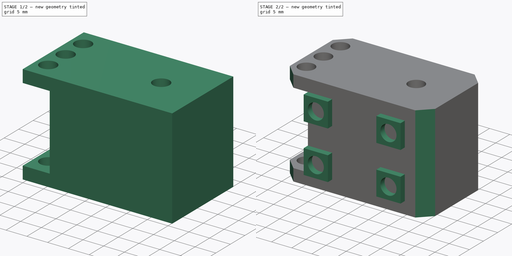
[diagram: build sequence overview — one tinted view per stage of 2, left to right]
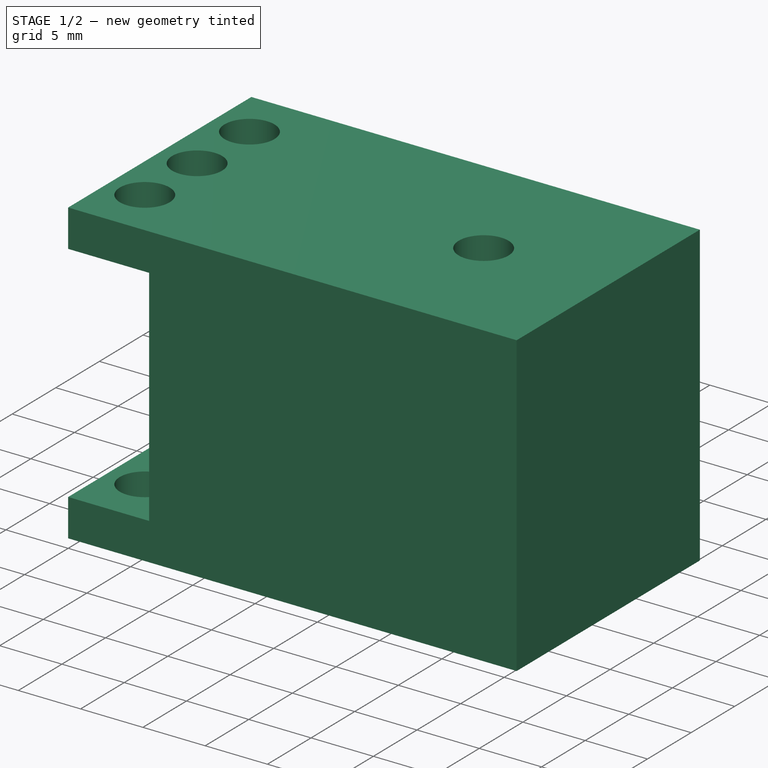
[diagram: stage 1 of 2 — iso view after this stage's code; geometry added in this stage tinted green]
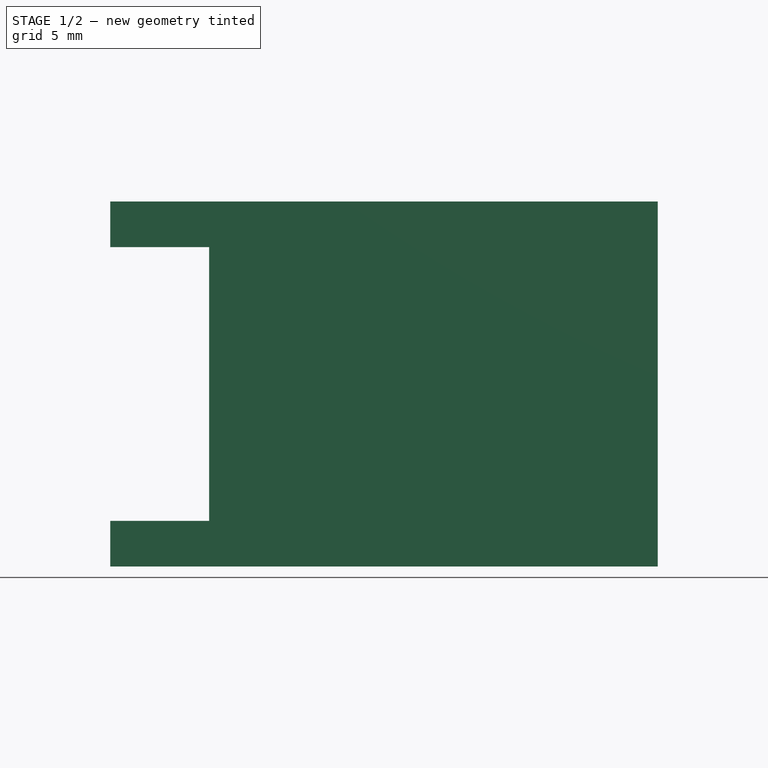
[diagram: stage 1 of 2 — front view after this stage's code; geometry added in this stage tinted green]
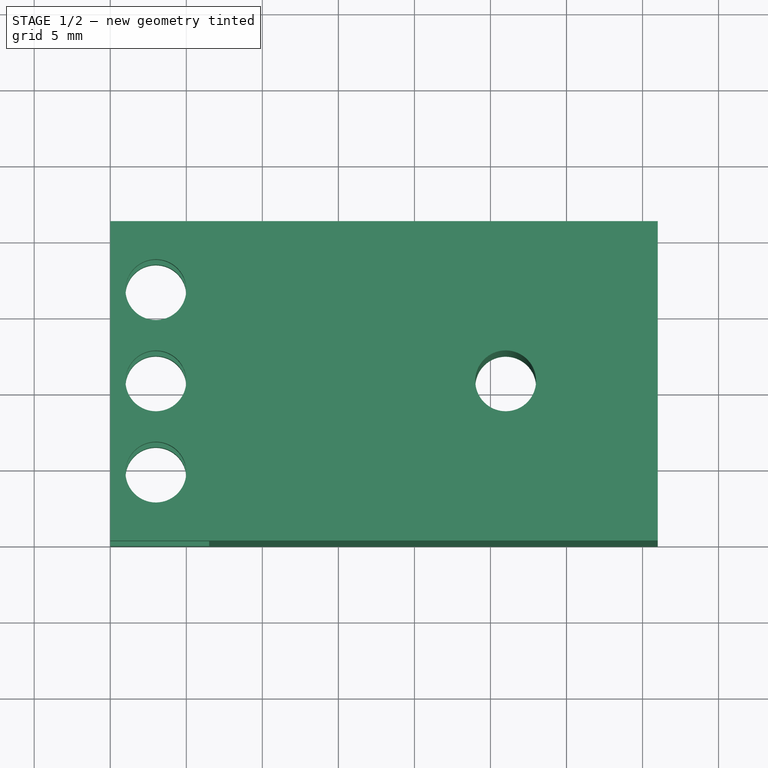
[diagram: stage 1 of 2 — top view after this stage's code; geometry added in this stage tinted green]
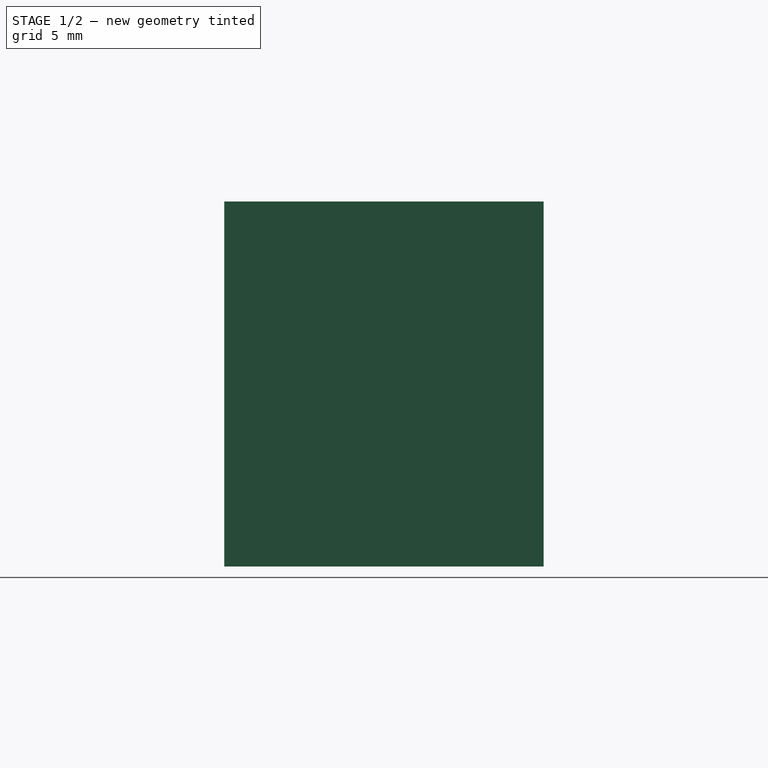
[diagram: stage 1 of 2 — right view after this stage's code; geometry added in this stage tinted green]
FCSTD DOCUMENT  (FreeCAD 0.16R6707 (Git))
Label: XL-320
License: All rights reserved
LicenseURL: http://en.wikipedia.org/wiki/All_rights_reserved
objects: Sketcher::SketchObject×4, PartDesign::Pad×2, PartDesign::Pocket×2
note: 12 computed .brp shape members not serialized (recipe doc carries the construction recipe); baked Part::Feature solids carry a one-line shape summary decoded from their .brp

FEATURE [Sketcher::SketchObject] Sketch
  sketch-geometry (12):
    g0: LineSegment StartX=0 StartY=0 StartZ=0 EndX=36 EndY=0 EndZ=0
    g1: LineSegment StartX=36 StartY=0 StartZ=0 EndX=36 EndY=21 EndZ=0
    g2: LineSegment StartX=36 StartY=21 StartZ=0 EndX=0 EndY=21 EndZ=0
    g3: LineSegment StartX=0 StartY=21 StartZ=0 EndX=0 EndY=0 EndZ=0
    g4: GeomPoint [constr] X=3 Y=4.5 Z=0
    g5: GeomPoint [constr] X=3 Y=10.5 Z=0
    g6: GeomPoint [constr] X=3 Y=16.5 Z=0
    g7: Circle CenterX=3 CenterY=16.5 CenterZ=0 NormalX=0 NormalY=0 NormalZ=1 Radius=2
    g8: Circle CenterX=3 CenterY=10.5 CenterZ=0 NormalX=0 NormalY=0 NormalZ=1 Radius=2
    g9: Circle CenterX=3 CenterY=4.5 CenterZ=0 NormalX=0 NormalY=0 NormalZ=1 Radius=2
    g10: GeomPoint [constr] X=26 Y=10.5 Z=0
    g11: Circle CenterX=26 CenterY=10.5 CenterZ=0 NormalX=0 NormalY=0 NormalZ=1 Radius=2
  constraints (27):
    c: Coincident(g0,g1)
    c: Coincident(g1,g2)
    c: Coincident(g2,g3)
    c: Coincident(g3,g0)
    c: Horizontal(g0)
    c: Horizontal(g2)
    c: Vertical(g1)
    c: Vertical(g3)
    c: Coincident(g0,g-1)
    c: Distance(g0) = 36
    c: Distance(g1) = 21
    c: DistanceX(g4) = 3
    c: DistanceX(g5) = 3
    c: DistanceX(g6) = 3
    c: DistanceY(g4) = 4.5
    c: DistanceY(g5) = 10.5
    c: DistanceY(g6) = 16.5
    c: Coincident(g7,g6)
    c: Coincident(g8,g5)
    c: Coincident(g9,g4)
    c: Radius(g7) = 2
    c: Radius(g8) = 2
    c: Radius(g9) = 2
    c: DistanceY(g10) = 10.5
    c: DistanceX(g10) = 26
    c: Coincident(g11,g10)
    c: Radius(g11) = 2
FEATURE [PartDesign::Pad] Pad
  Length = 24
  Length2 = 100
  Sketch = -> Sketch
  Type = 0
FEATURE [Sketcher::SketchObject] Sketch001
  Placement = pos=(0,0,0) rot=(1,0,0;1.5708rad)
  Support = -> Pad [Face1]
  sketch-geometry (5):
    g0: GeomPoint [constr] X=0 Y=3 Z=0
    g1: LineSegment StartX=0 StartY=3 StartZ=0 EndX=6.5 EndY=3 EndZ=0
    g2: LineSegment StartX=6.5 StartY=3 StartZ=0 EndX=6.5 EndY=21 EndZ=0
    g3: LineSegment StartX=6.5 StartY=21 StartZ=0 EndX=0 EndY=21 EndZ=0
    g4: LineSegment StartX=0 StartY=21 StartZ=0 EndX=0 EndY=3 EndZ=0
  constraints (13):
    c: PointOnObject(g0,g-2)
    c: DistanceY(g0) = 3
    c: Coincident(g1,g2)
    c: Coincident(g2,g3)
    c: Coincident(g3,g4)
    c: Coincident(g4,g1)
    c: Horizontal(g1)
    c: Horizontal(g3)
    c: Vertical(g2)
    c: Vertical(g4)
    c: Coincident(g1,g0)
    c: Distance(g1) = 6.5
    c: Distance(g2) = 18
FEATURE [PartDesign::Pocket] Pocket
  Length = 21
  Sketch = -> Sketch001
  Type = 0
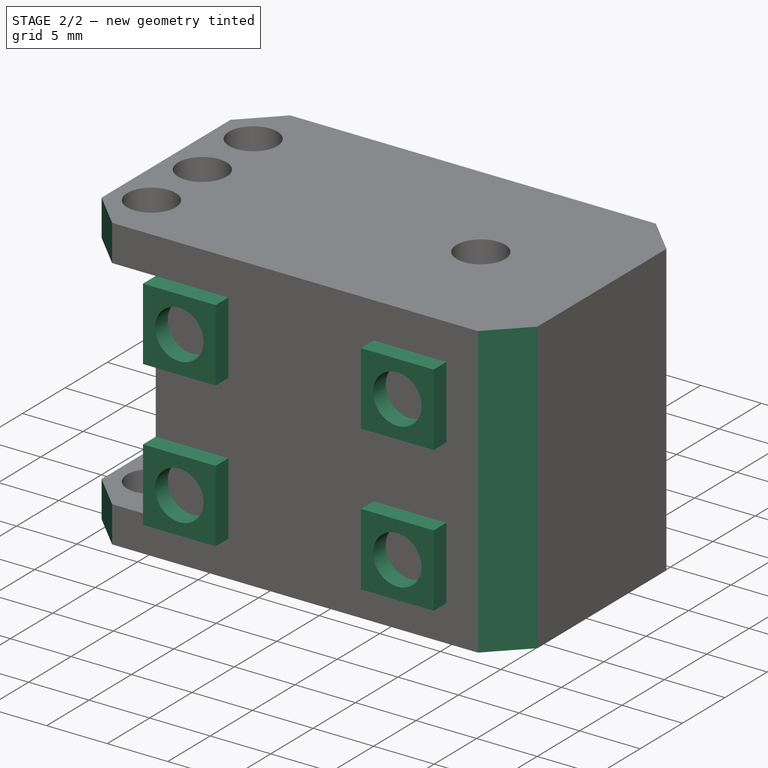
[diagram: stage 2 of 2 — iso view after this stage's code; geometry added in this stage tinted green]
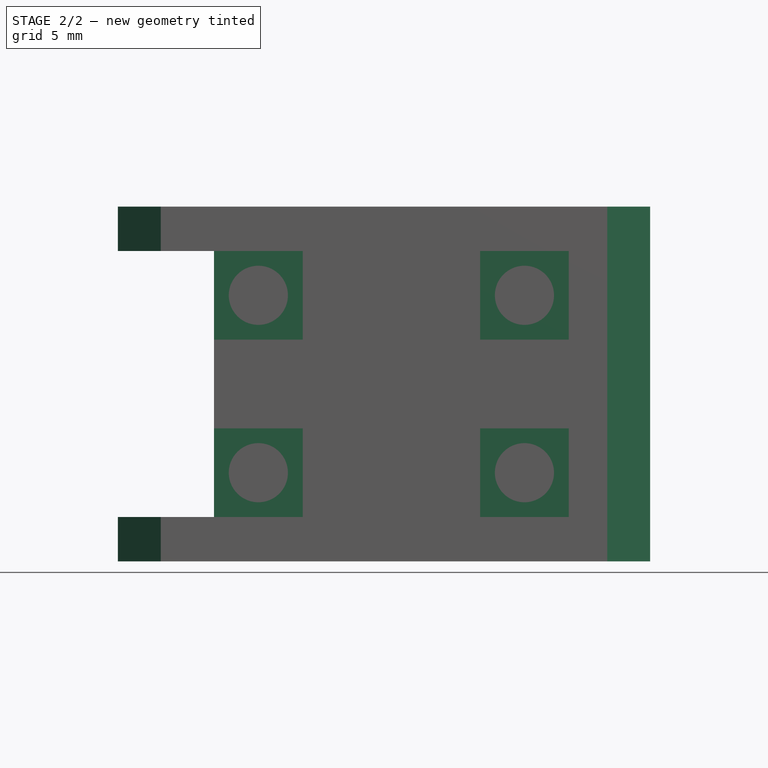
[diagram: stage 2 of 2 — front view after this stage's code; geometry added in this stage tinted green]
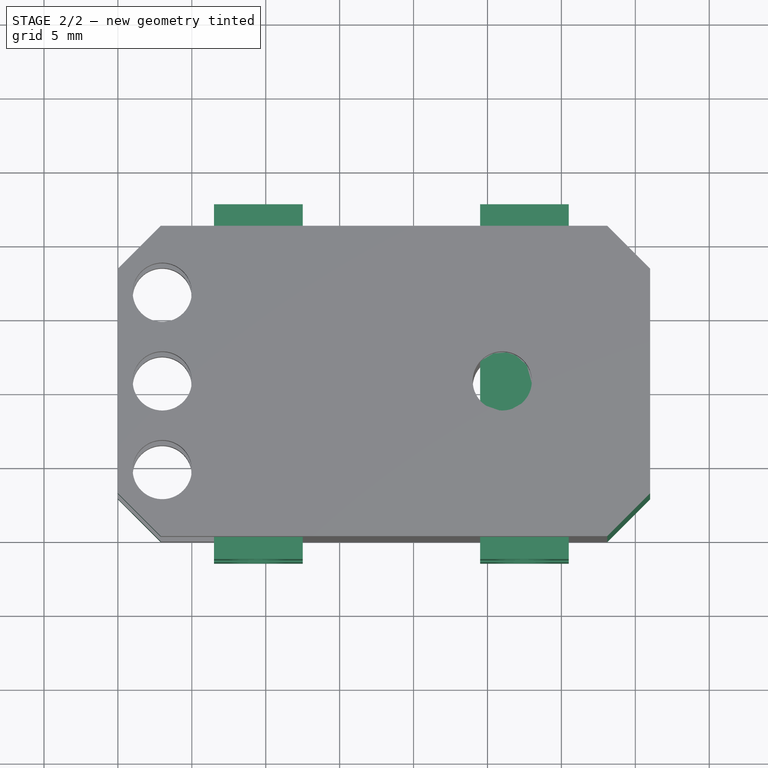
[diagram: stage 2 of 2 — top view after this stage's code; geometry added in this stage tinted green]
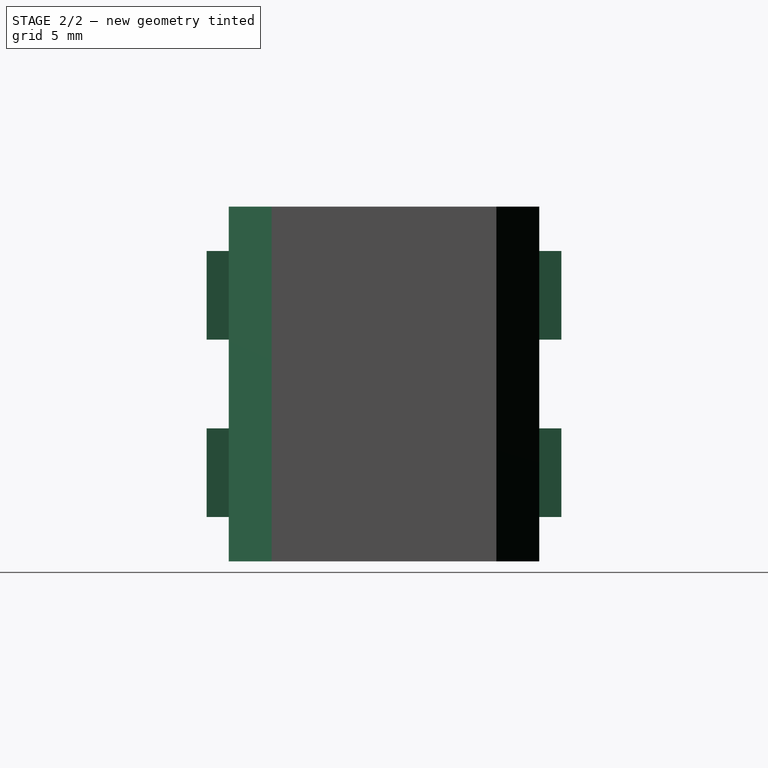
[diagram: stage 2 of 2 — right view after this stage's code; geometry added in this stage tinted green]
FEATURE [Sketcher::SketchObject] Sketch002
  Placement = pos=(0,0,0) rot=(1,0,0;3.14159rad)
  Support = -> Pocket [Face2]
  sketch-geometry (21):
    g0: GeomPoint [constr] X=0 Y=-2.9 Z=0
    g1: GeomPoint [constr] X=2.9 Y=0 Z=0
    g2: GeomPoint [constr] X=0 Y=-18.1 Z=0
    g3: GeomPoint [constr] X=33.1 Y=0 Z=0
    g4: GeomPoint [constr] X=36 Y=-2.9 Z=0
    g5: GeomPoint [constr] X=36 Y=-18.1 Z=0
    g6: GeomPoint [constr] X=33.1 Y=-21 Z=0
    g7: GeomPoint [constr] X=2.9 Y=-21 Z=0
    g8: LineSegment StartX=0 StartY=-18.1 StartZ=0 EndX=2.9 EndY=-21 EndZ=0
    g9: LineSegment StartX=33.1 StartY=-21 StartZ=0 EndX=36 EndY=-18.1 EndZ=0
    g10: LineSegment StartX=36 StartY=-2.9 StartZ=0 EndX=33.1 EndY=0 EndZ=0
    g11: LineSegment StartX=2.9 StartY=0 StartZ=0 EndX=0 EndY=-2.9 EndZ=0
    g12: GeomPoint [constr] X=36 Y=-21 Z=0
    g13: LineSegment StartX=36 StartY=-2.9 StartZ=0 EndX=36 EndY=0 EndZ=0
    g14: LineSegment StartX=36 StartY=0 StartZ=0 EndX=33.1 EndY=0 EndZ=0
    g15: LineSegment StartX=2.9 StartY=0 StartZ=0 EndX=0 EndY=0 EndZ=0
    g16: LineSegment StartX=0 StartY=0 StartZ=0 EndX=0 EndY=-2.9 EndZ=0
    g17: LineSegment StartX=2.9 StartY=-21 StartZ=0 EndX=0 EndY=-21 EndZ=0
    g18: LineSegment StartX=0 StartY=-21 StartZ=0 EndX=0 EndY=-18.1 EndZ=0
    g19: LineSegment StartX=33.1 StartY=-21 StartZ=0 EndX=36 EndY=-21 EndZ=0
    g20: LineSegment StartX=36 StartY=-21 StartZ=0 EndX=36 EndY=-18.1 EndZ=0
  constraints (44):
    c: PointOnObject(g0,g-2)
    c: PointOnObject(g1,g-1)
    c: PointOnObject(g2,g-2)
    c: PointOnObject(g3,g-1)
    c: DistanceY(g0) = -2.9
    c: DistanceX(g1) = 2.9
    c: DistanceX(g3) = 33.1
    c: DistanceX(g4) = 36
    c: DistanceY(g4) = -2.9
    c: DistanceY(g2) = -18.1
    c: DistanceY(g7) = -21
    c: DistanceX(g7) = 2.9
    c: DistanceX(g6) = 33.1
    c: DistanceY(g6) = -21
    c: DistanceY(g5) = -18.1
    c: DistanceX(g5) = 36
    c: Coincident(g8,g2)
    c: Coincident(g8,g7)
    c: Coincident(g9,g6)
    c: Coincident(g9,g5)
    c: Coincident(g10,g4)
    c: Coincident(g10,g3)
    c: Coincident(g11,g1)
    c: Coincident(g11,g0)
    c: Coincident(g13,g4)
    c: PointOnObject(g13,g-1)
    c: Vertical(g13)
    c: Coincident(g14,g13)
    c: Coincident(g14,g3)
    c: Coincident(g15,g1)
    c: Coincident(g15,g-1)
    c: Coincident(g16,g-1)
    c: Coincident(g16,g0)
    c: Coincident(g17,g7)
    c: PointOnObject(g17,g-2)
    c: Horizontal(g17)
    c: Coincident(g18,g17)
    c: Coincident(g18,g2)
    c: DistanceY(g12) = -21
    c: DistanceX(g12) = 36
    c: Coincident(g19,g6)
    c: Horizontal(g19)
    c: Coincident(g20,g12)
    c: Coincident(g20,g5)
FEATURE [PartDesign::Pocket] Pocket001
  Length = 24
  Sketch = -> Sketch002
  Type = 0
FEATURE [Sketcher::SketchObject] Sketch003
  Placement = pos=(0,0,0) rot=(1,0,0;1.5708rad)
  Support = -> Pocket001 [Face1]
  sketch-geometry (28):
    g0: GeomPoint [constr] X=6.5 Y=3 Z=0
    g1: GeomPoint [constr] X=6.5 Y=15 Z=0
    g2: GeomPoint [constr] X=24.5 Y=15 Z=0
    g3: GeomPoint [constr] X=24.5 Y=3 Z=0
    g4: LineSegment StartX=6.5 StartY=15 StartZ=0 EndX=12.5 EndY=15 EndZ=0
    g5: LineSegment StartX=12.5 StartY=15 StartZ=0 EndX=12.5 EndY=21 EndZ=0
    g6: LineSegment StartX=12.5 StartY=21 StartZ=0 EndX=6.5 EndY=21 EndZ=0
    g7: LineSegment StartX=6.5 StartY=21 StartZ=0 EndX=6.5 EndY=15 EndZ=0
    g8: LineSegment StartX=6.5 StartY=3 StartZ=0 EndX=12.5 EndY=3 EndZ=0
    g9: LineSegment StartX=12.5 StartY=3 StartZ=0 EndX=12.5 EndY=9 EndZ=0
    g10: LineSegment StartX=12.5 StartY=9 StartZ=0 EndX=6.5 EndY=9 EndZ=0
    g11: LineSegment StartX=6.5 StartY=9 StartZ=0 EndX=6.5 EndY=3 EndZ=0
    g12: LineSegment StartX=24.5 StartY=15 StartZ=0 EndX=30.5 EndY=15 EndZ=0
    g13: LineSegment StartX=30.5 StartY=15 StartZ=0 EndX=30.5 EndY=21 EndZ=0
    g14: LineSegment StartX=30.5 StartY=21 StartZ=0 EndX=24.5 EndY=21 EndZ=0
    g15: LineSegment StartX=24.5 StartY=21 StartZ=0 EndX=24.5 EndY=15 EndZ=0
    g16: LineSegment StartX=24.5 StartY=3 StartZ=0 EndX=30.5 EndY=3 EndZ=0
    g17: LineSegment StartX=30.5 StartY=3 StartZ=0 EndX=30.5 EndY=9 EndZ=0
    g18: LineSegment StartX=30.5 StartY=9 StartZ=0 EndX=24.5 EndY=9 EndZ=0
    g19: LineSegment StartX=24.5 StartY=9 StartZ=0 EndX=24.5 EndY=3 EndZ=0
    g20: GeomPoint [constr] X=9.5 Y=6 Z=0
    g21: GeomPoint [constr] X=9.5 Y=18 Z=0
    g22: GeomPoint [constr] X=27.5 Y=18 Z=0
    g23: GeomPoint [constr] X=27.5 Y=6 Z=0
    g24: Circle CenterX=9.5 CenterY=18 CenterZ=0 NormalX=0 NormalY=0 NormalZ=1 Radius=2
    g25: Circle CenterX=27.5 CenterY=18 CenterZ=0 NormalX=0 NormalY=0 NormalZ=1 Radius=2
    g26: Circle CenterX=27.5 CenterY=6 CenterZ=0 NormalX=0 NormalY=0 NormalZ=1 Radius=2
    g27: Circle CenterX=9.5 CenterY=6 CenterZ=0 NormalX=0 NormalY=0 NormalZ=1 Radius=2
  constraints (68):
    c: DistanceY(g0) = 3
    c: DistanceY(g1) = 15
    c: DistanceX(g1) = 6.5
    c: DistanceX(g0) = 6.5
    c: Coincident(g4,g5)
    c: Coincident(g5,g6)
    c: Coincident(g6,g7)
    c: Coincident(g7,g4)
    c: Horizontal(g4)
    c: Horizontal(g6)
    c: Vertical(g5)
    c: Vertical(g7)
    c: Coincident(g4,g1)
    c: Distance(g5) = 6
    c: Distance(g4) = 6
    c: Coincident(g8,g9)
    c: Coincident(g9,g10)
    c: Coincident(g10,g11)
    c: Coincident(g11,g8)
    c: Horizontal(g8)
    c: Horizontal(g10)
    c: Vertical(g9)
    c: Vertical(g11)
    c: Coincident(g8,g0)
    c: Distance(g9) = 6
    c: Distance(g10) = 6
    c: DistanceY(g3) = 3
    c: DistanceY(g2) = 15
    c: DistanceX(g3) = 24.5
    c: DistanceX(g2) = 24.5
    c: Coincident(g12,g13)
    c: Coincident(g13,g14)
    c: Coincident(g14,g15)
    c: Coincident(g15,g12)
    c: Horizontal(g12)
    c: Horizontal(g14)
    c: Vertical(g13)
    c: Vertical(g15)
    c: Coincident(g12,g2)
    c: Coincident(g16,g17)
    c: Coincident(g17,g18)
    c: Coincident(g18,g19)
    c: Coincident(g19,g16)
    c: Horizontal(g16)
    c: Horizontal(g18)
    c: Vertical(g17)
    c: Vertical(g19)
    c: Coincident(g16,g3)
    c: Distance(g12) = 6
    c: Distance(g13) = 6
    c: Distance(g18) = 6
    c: Distance(g17) = 6
    c: DistanceY(g20) = 6
    c: DistanceX(g20) = 9.5
    c: DistanceX(g21) = 9.5
    c: DistanceY(g21) = 18
    c: DistanceY(g22) = 18
    c: DistanceY(g23) = 6
    c: DistanceX(g22) = 27.5
    c: DistanceX(g23) = 27.5
    c: Coincident(g24,g21)
    c: Coincident(g25,g22)
    c: Coincident(g26,g23)
    c: Coincident(g27,g20)
    c: Radius(g24) = 2
    c: Radius(g25) = 2
    c: Radius(g27) = 2
    c: Radius(g26) = 2
FEATURE [PartDesign::Pad] Pad001
  Length = 1.5
  Length2 = 22.5
  Sketch = -> Sketch003
  Type = 4
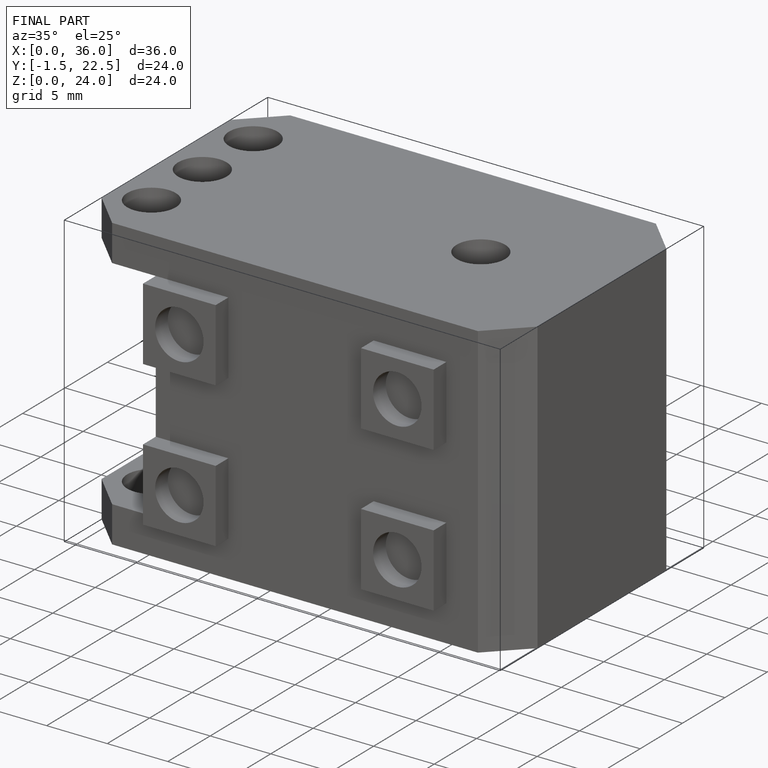
[diagram: finished part — iso view with bounding-box wireframe]
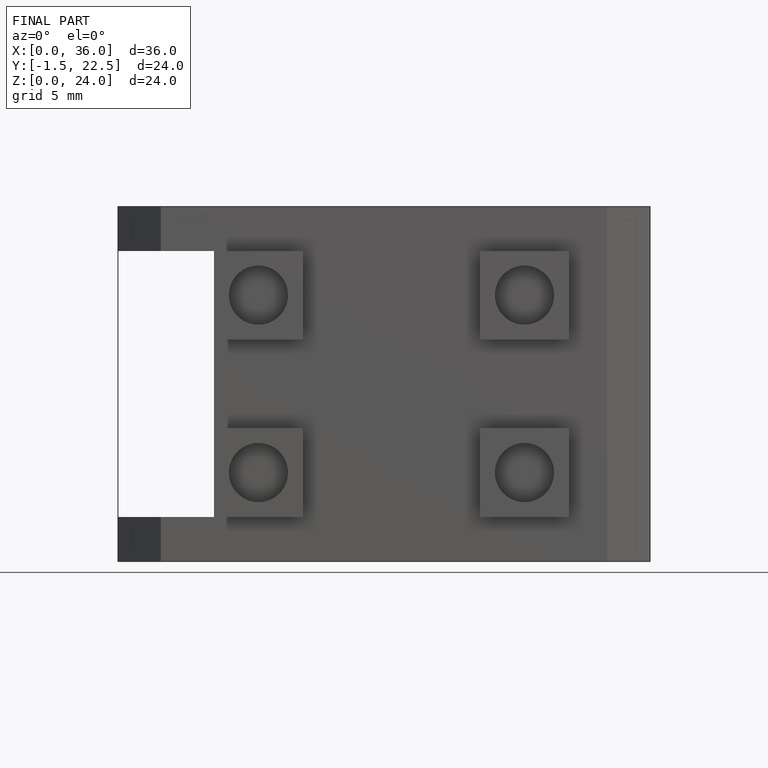
[diagram: finished part — front view with bounding-box wireframe]
